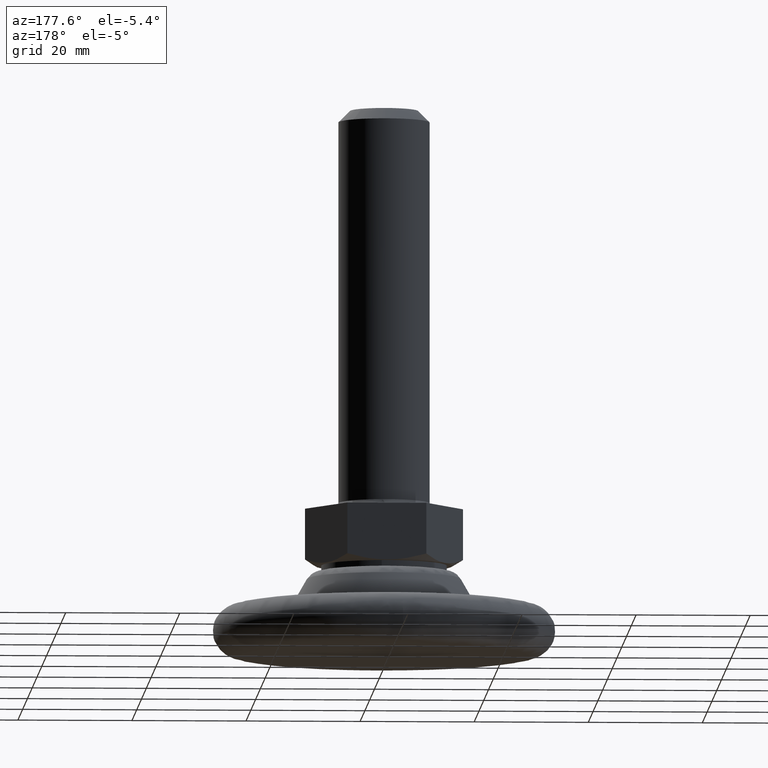
[diagram: clean part render]
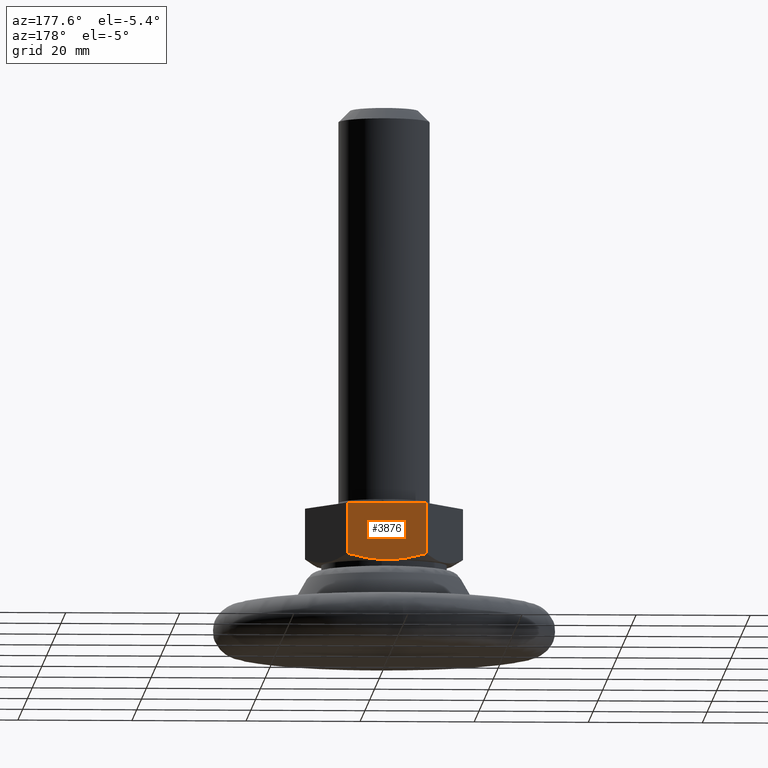
[diagram: same view with one face highlighted and labeled with its STEP entity id]
A machine part, auxiliary view. The second image highlights one B-rep face of the part: STEP entity #3876.
In plain terms, the highlighted face is a freeform B-spline surface patch.
Its self-contained STEP definition (entity closure, byte-faithful):
#3355=CARTESIAN_POINT('',(6.928203000000000,12.0,17.071796613999251));
#3356=VERTEX_POINT('',#3355);
#3372=CARTESIAN_POINT('',(0.0,12.0,16.0));
#3373=VERTEX_POINT('',#3372);
#3387=CARTESIAN_POINT('',(0.0,12.0,16.0));
#3388=CARTESIAN_POINT('',(0.000726231421873,12.0,15.999999910937420));
#3389=CARTESIAN_POINT('',(0.001452465226052,12.0,15.999999948812031));
#3390=CARTESIAN_POINT('',(0.587857315095710,12.0,16.000061417438062));
#3391=CARTESIAN_POINT('',(1.175470456323819,12.0,16.025010609489719));
#3392=CARTESIAN_POINT('',(1.912375068654203,12.0,16.086921227190832));
#3393=CARTESIAN_POINT('',(2.059656070470916,12.0,16.100816242122018));
#3394=CARTESIAN_POINT('',(2.353183032691102,12.0,16.131462282819221));
#3395=CARTESIAN_POINT('',(2.792309250935042,12.0,16.181746412022822));
#3396=CARTESIAN_POINT('',(3.228068482535965,12.0,16.244509895108688));
#3397=CARTESIAN_POINT('',(4.673707064701280,12.0,16.479266624852720));
#3398=CARTESIAN_POINT('',(5.808249902548710,12.0,16.748494010911720));
#3399=CARTESIAN_POINT('',(6.928203000000000,12.0,17.071796613999251));
#3400=B_SPLINE_CURVE_WITH_KNOTS('',3,(#3387,#3388,#3389,#3390,#3391,#3392,#3393,#3394,#3395,#3396,#3397,#3398,#3399),.UNSPECIFIED.,.F.,.U.,(4,2,2,2,1,2,4),(0.499845001003699,0.500000000000000,0.624999999999999,0.656249999999999,0.687499999999999,0.749999999999999,1.0),.UNSPECIFIED.);
#3401=EDGE_CURVE('',#3373,#3356,#3400,.T.);
#3420=CARTESIAN_POINT('',(-6.928203000000000,12.0,17.071796613999251));
#3421=VERTEX_POINT('',#3420);
#3422=CARTESIAN_POINT('',(-6.928203000000000,12.0,17.071796613999251));
#3423=CARTESIAN_POINT('',(-6.364500030387390,12.0,16.909069587431059));
#3424=CARTESIAN_POINT('',(-5.795511605397141,12.0,16.759656774133308));
#3425=CARTESIAN_POINT('',(-4.644764282264085,12.000000000000011,16.494632143389349));
#3426=CARTESIAN_POINT('',(-4.067982213518707,12.0,16.380239055597290));
#3427=CARTESIAN_POINT('',(-2.911131162261982,12.0,16.193739187166070));
#3428=CARTESIAN_POINT('',(-2.331059030402615,12.0,16.121672923043910));
#3429=CARTESIAN_POINT('',(-1.167966334742434,12.0,16.024815114792460));
#3430=CARTESIAN_POINT('',(-0.584947586527273,12.0,16.000000213064489));
#3431=CARTESIAN_POINT('',(0.0,12.0,16.0));
#3432=B_SPLINE_CURVE_WITH_KNOTS('',3,(#3422,#3423,#3424,#3425,#3426,#3427,#3428,#3429,#3430,#3431),.UNSPECIFIED.,.F.,.U.,(4,2,2,2,4),(0.0,0.125000000000000,0.250000000000000,0.375000000000000,0.499845000963252),.UNSPECIFIED.);
#3433=EDGE_CURVE('',#3421,#3373,#3432,.T.);
#3712=CARTESIAN_POINT('',(6.928203000000000,12.0,26.0));
#3713=VERTEX_POINT('',#3712);
#3714=CARTESIAN_POINT('',(-6.928203000000000,12.0,26.0));
#3715=VERTEX_POINT('',#3714);
#3716=CARTESIAN_POINT('',(6.928203000000000,12.0,26.0));
#3717=CARTESIAN_POINT('',(-6.928203000000000,12.0,26.0));
#3718=QUASI_UNIFORM_CURVE('',1,(#3716,#3717),.UNSPECIFIED.,.F.,.U.);
#3719=EDGE_CURVE('',#3713,#3715,#3718,.T.);
#3781=CARTESIAN_POINT('',(6.928203000000000,12.0,26.0));
#3782=CARTESIAN_POINT('',(6.928203000000000,12.0,17.071796613999251));
#3783=QUASI_UNIFORM_CURVE('',1,(#3781,#3782),.UNSPECIFIED.,.F.,.U.);
#3784=EDGE_CURVE('',#3713,#3356,#3783,.T.);
#3855=CARTESIAN_POINT('',(-6.928203000000000,12.0,26.0));
#3856=CARTESIAN_POINT('',(-6.928203000000000,12.0,17.071796613999251));
#3857=QUASI_UNIFORM_CURVE('',1,(#3855,#3856),.UNSPECIFIED.,.F.,.U.);
#3858=EDGE_CURVE('',#3715,#3421,#3857,.T.);
#3864=CARTESIAN_POINT('',(-7.620330582917624,12.0,26.499499980618062));
#3865=CARTESIAN_POINT('',(-7.620330582917624,12.0,15.500499751161041));
#3866=CARTESIAN_POINT('',(7.620330830689472,12.0,26.499499980618062));
#3867=CARTESIAN_POINT('',(7.620330830689472,12.0,15.500499751161041));
#3868=B_SPLINE_SURFACE_WITH_KNOTS('',1,1,((#3864,#3866),(#3865,#3867)),.UNSPECIFIED.,.F.,.F.,.U.,(2,2),(2,2),(0.0,10.999000229457019),(0.0,15.240661413607100),.UNSPECIFIED.);
#3869=ORIENTED_EDGE('',*,*,#3433,.F.);
#3870=ORIENTED_EDGE('',*,*,#3858,.F.);
#3871=ORIENTED_EDGE('',*,*,#3719,.F.);
#3872=ORIENTED_EDGE('',*,*,#3784,.T.);
#3873=ORIENTED_EDGE('',*,*,#3401,.F.);
#3874=EDGE_LOOP('',(#3869,#3870,#3871,#3872,#3873));
#3875=FACE_OUTER_BOUND('',#3874,.T.);
#3876=ADVANCED_FACE('',(#3875),#3868,.F.);